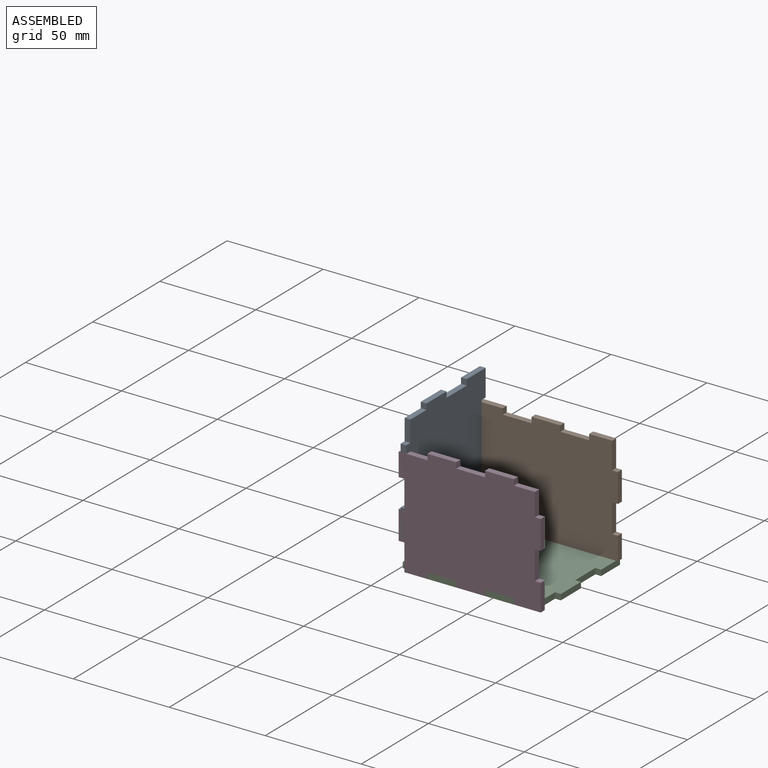
[diagram: assembled view]
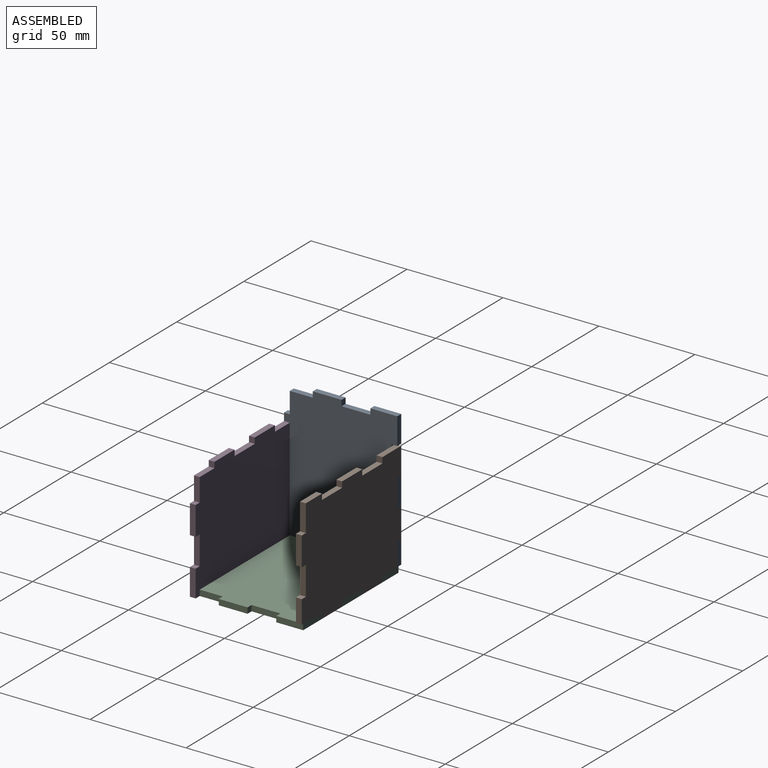
[diagram: assembled view, second angle]
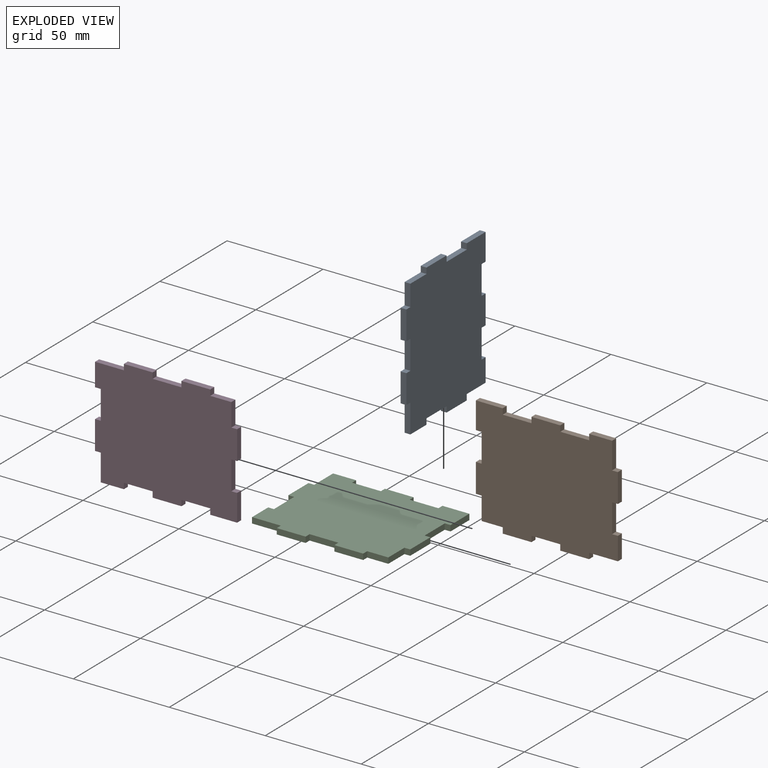
[diagram: exploded view]
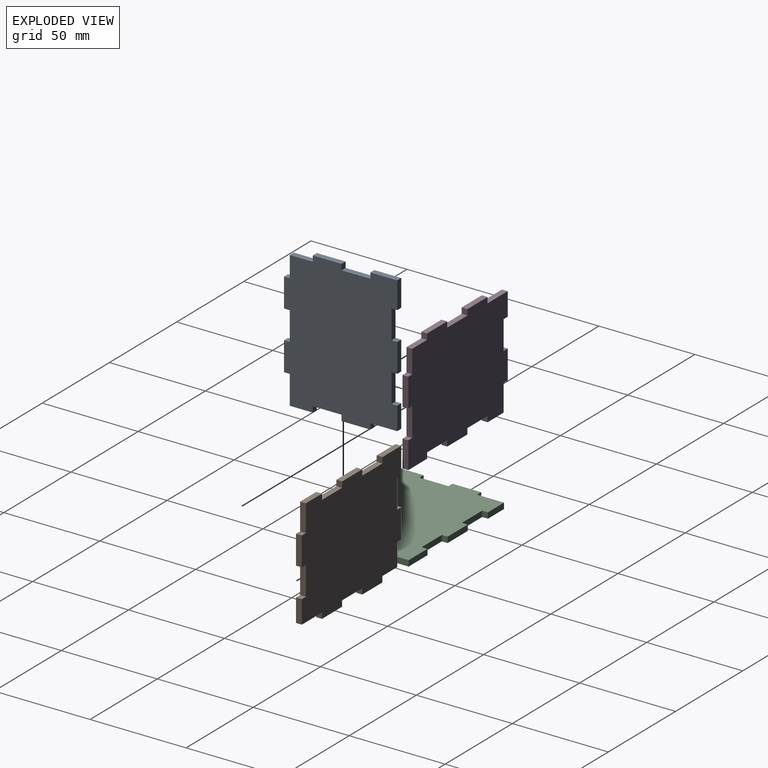
[diagram: exploded view, second angle]
ASSEMBLY  parts=4 mates=3
PART A: 34 faces, bbox 74x59x3 mm
  f0: plane 14x3mm, normal (-1,0,0), area 42mm2, adj f1,f31,f32,f33
  f1: plane 3x3mm, normal (0,1,0), area 9mm2, adj f0,f2,f32,f33
  f2: plane 15x3mm, normal (-1,0,0), area 45mm2, adj f1,f3,f32,f33
  f3: plane 3x3mm, normal (0,-1,0), area 9mm2, adj f2,f4,f32,f33
  f4: plane 15x3mm, normal (-1,0,0), area 45mm2, adj f3,f5,f32,f33
  f5: plane 3x3mm, normal (0,1,0), area 9mm2, adj f4,f6,f32,f33
  f6: plane 12x3mm, normal (-1,0,0), area 36mm2, adj f5,f7,f32,f33
  f7: plane 15x3mm, normal (0,-1,0), area 45mm2, adj f6,f8,f32,f33
  f8: plane 3x3mm, normal (-1,0,0), area 9mm2, adj f7,f9,f32,f33
  f9: plane 15x3mm, normal (0,-1,0), area 45mm2, adj f8,f10,f32,f33
  f10: plane 3x3mm, normal (1,0,0), area 9mm2, adj f9,f11,f32,f33
  f11: plane 15x3mm, normal (0,-1,0), area 45mm2, adj f10,f12,f32,f33
  f12: plane 3x3mm, normal (-1,0,0), area 9mm2, adj f11,f13,f32,f33
  f13: plane 15x3mm, normal (0,-1,0), area 45mm2, adj f12,f14,f32,f33
  f14: plane 3x3mm, normal (1,0,0), area 9mm2, adj f13,f15,f32,f33
  f15: plane 11x3mm, normal (0,-1,0), area 33mm2, adj f14,f16,f32,f33
  f16: plane 12x3mm, normal (1,0,0), area 36mm2, adj f15,f17,f32,f33
  f17: plane 3x3mm, normal (0,-1,0), area 9mm2, adj f16,f18,f32,f33
  f18: plane 15x3mm, normal (1,0,0), area 45mm2, adj f17,f19,f32,f33
  f19: plane 3x3mm, normal (0,1,0), area 9mm2, adj f18,f20,f32,f33
  f20: plane 15x3mm, normal (1,0,0), area 45mm2, adj f19,f21,f32,f33
  f21: plane 3x3mm, normal (0,-1,0), area 9mm2, adj f20,f22,f32,f33
  f22: plane 14x3mm, normal (1,0,0), area 42mm2, adj f21,f23,f32,f33
  f23: plane 14x3mm, normal (0,1,0), area 42mm2, adj f22,f24,f32,f33
  f24: plane 3x3mm, normal (-1,0,0), area 9mm2, adj f23,f25,f32,f33
  f25: plane 15x3mm, normal (0,1,0), area 45mm2, adj f24,f26,f32,f33
  f26: plane 3x3mm, normal (1,0,0), area 9mm2, adj f25,f27,f32,f33
  f27: plane 15x3mm, normal (0,1,0), area 45mm2, adj f26,f28,f32,f33
  f28: plane 3x3mm, normal (-1,0,0), area 9mm2, adj f27,f29,f32,f33
  f29: plane 15x3mm, normal (0,1,0), area 45mm2, adj f28,f30,f32,f33
  f30: plane 3x3mm, normal (1,0,0), area 9mm2, adj f29,f31,f32,f33
  f31: plane 12x3mm, normal (0,1,0), area 36mm2, adj f0,f30,f32,f33
  f32: plane 74x59mm, normal (0,0,1), area 3976mm2, adj f0,f1,f2,f3,f4,f5,f6,f7
  f33: plane 74x59mm, normal (0,0,-1), area 3976mm2, adj f0,f1,f2,f3,f4,f5,f6,f7
PART B: same geometry as A
PART C: same geometry as A
PART D: same geometry as A
PLACE A rot(axis=(0,-1,0),90deg) t=(-42.76,-4.43,37.3)mm
PLACE B rot(axis=(0,0.71,0.71),180deg) t=(-8.76,22.07,29.8)mm
PLACE C t=(-9.76,-4.43,0.3)mm
PLACE D rot(axis=(-1,0,0),90deg) t=(-9.76,-33.93,29.8)mm
MATE fastened B.f8 <-> C.f24  axis (1,0,0) through (13.24,23.57,1.8)mm
MATE fastened D.f30 <-> C.f8  axis (1,0,0) through (-31.76,-32.43,1.8)mm
MATE fastened A.f30 <-> B.f17  axis (0,0,1) through (-44.26,23.57,15.3)mm
